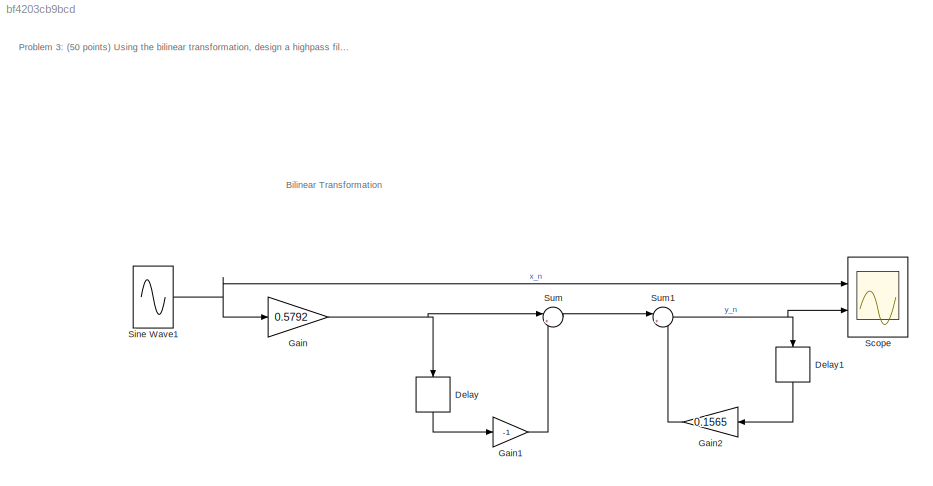
MODEL slx_bf4203cb9bcd
KIND model
CONFIG AbsTol = auto
CONFIG EnableMultiTasking = off
CONFIG FixedStep = auto
CONFIG MaxStep = auto
CONFIG MinStep = auto
CONFIG RelTol = 1e-3
CONFIG SampleTimeConstraint = Unconstrained
CONFIG SolverName = VariableStepAuto
CONFIG StartTime = 0.0
CONFIG StopTime = 10.0
BLOCK [Delay] Delay
  DelayLength = 1
  InputPortMap = u0
  NameLocation = left
  Ports = [1, 1]
BLOCK [Delay] Delay1
  DelayLength = 1
  InputPortMap = u0
  NameLocation = left
  Ports = [1, 1]
BLOCK [Gain] Gain
  Gain = 0.5792
BLOCK [Gain] Gain1
  Gain = -1
BLOCK [Gain] Gain2
  Gain = 0.1565
  NameLocation = top
BLOCK [Scope] Scope
  Floating = off
  NumInputPorts = 2
  Ports = [2]
  ScopeSpecificationString = Simulink.scopes.TimeScopeBlockCfg('CurrentConfiguration', extmgr.ConfigurationSet(extmgr.Configuration('Core','General UI',true),extmgr.Configuration('Core','Source UI',true),extmgr.Configuration('Sources','WiredSimulink',true),extmgr.Configuration('Visuals','Time Domain',true,'SerializedDisplays',{struct('MinYLimReal','-1.25','MaxYLimReal','1.25','YLabelReal','','MinYLimMag','0.00000','MaxYLimMag...<+2186ch>
BLOCK [Sin] Sine Wave1
  Frequency = 1000*6.28
  Ports = [0, 1]
  SampleTime = 2*10^-4
BLOCK [Sum] Sum
  Inputs = |++
  Ports = [2, 1]
BLOCK [Sum] Sum1
  Inputs = |++
  Ports = [2, 1]
ANNOTATION (root): Problem 3: (50 points) Using the bilinear transformation, design a highpass filter, monotonic in passband with cutoff frequency of 1000 Hz and down 10 dB at 350 Hz. The sampling frequency is 5000 Hz. Implement using basic building blocks. Show the derivation for this filter. Demonstrate the filter’s output for 5 different frequencies ranging from 100 Hz to 10000 Hz. Choose these frequencies smartl...<+36ch>
ANNOTATION (root): Bilinear Transformation
LINE Delay1:1 -> Gain2:1
LINE Delay:1 -> Gain1:1
LINE Gain1:1 -> Sum:2
LINE Gain2:1 -> Sum1:2
NET Gain:1 -> Delay:1, Sum:1
NET Sine Wave1:1 -> Gain:1, Scope:1
NET Sum1:1 -> Delay1:1, Scope:2
LINE Sum:1 -> Sum1:1
note: NET lines group one-source signal fan-out (src -> all destinations, sorted); 1:1 wires keep LINE
